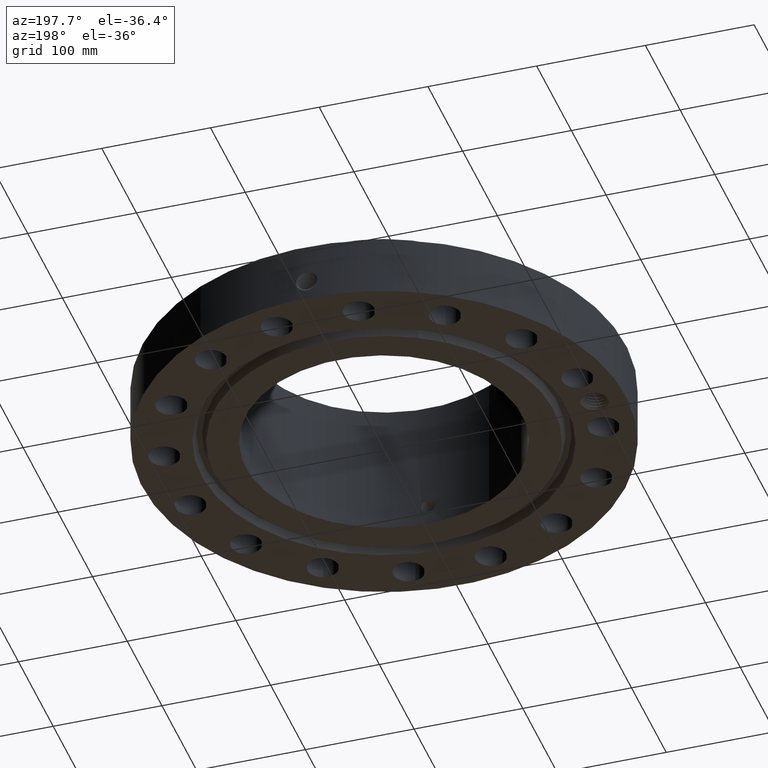
[diagram: clean part render]
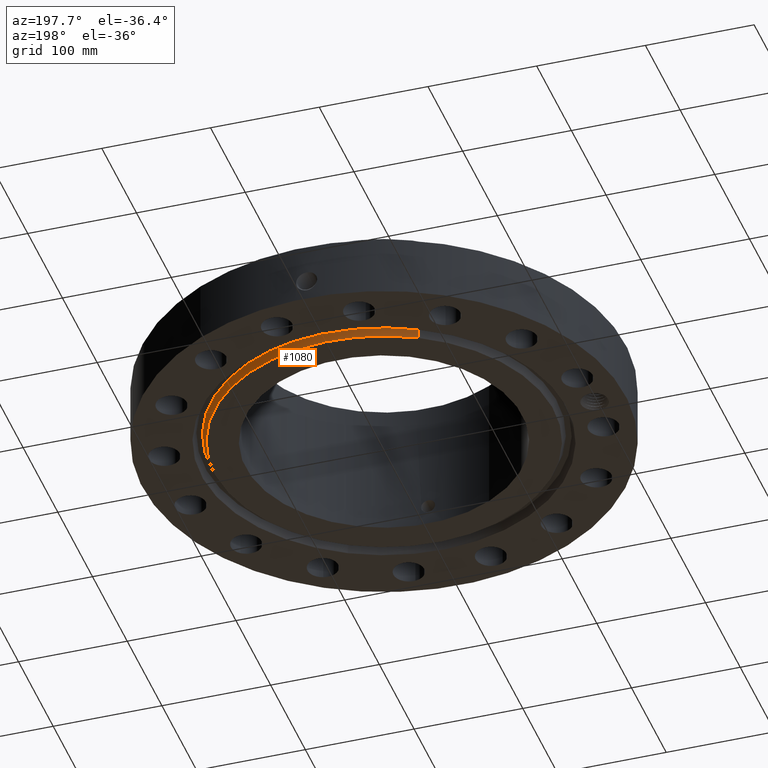
[diagram: same view with one face highlighted and labeled with its STEP entity id]
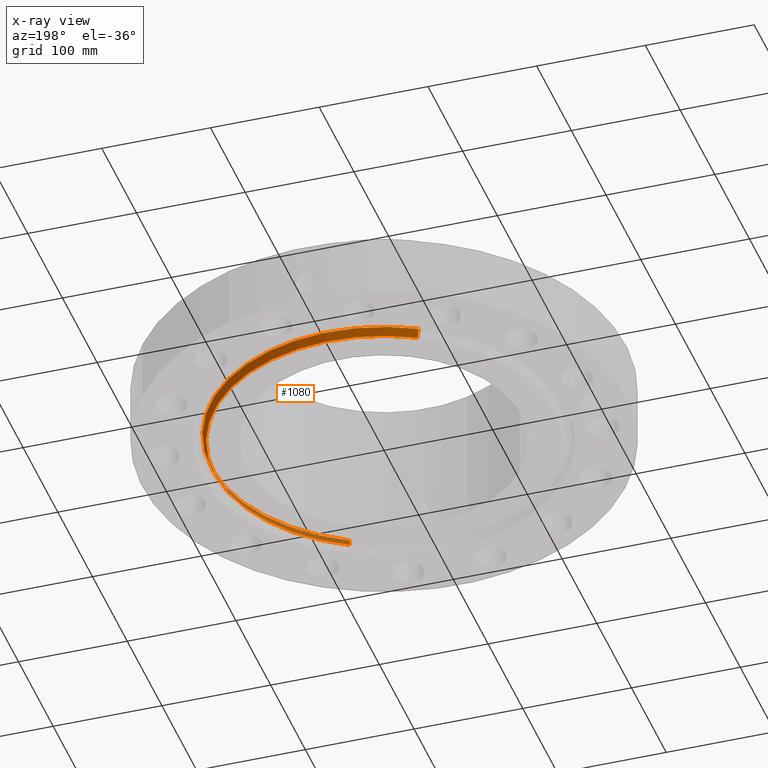
[diagram: x-ray of the same camera — body ghosted, the highlighted face saturated]
A machine part, auxiliary view. The second image highlights one B-rep face of the part: STEP entity #1080.
The next image is the same camera in x-ray: the body ghosted, the highlighted face saturated — about 0% of this face is hidden behind the body in this view.
In plain terms, the highlighted conical surface has half-angle 23 deg.
Its self-contained STEP definition (entity closure, byte-faithful):
#602=AXIS2_PLACEMENT_3D('Circle Axis2P3D',#600,#601,$) ;
#1053=AXIS2_PLACEMENT_3D('Cone Axis2P3D',#1050,#1051,#1052) ;
#1064=AXIS2_PLACEMENT_3D('Circle Axis2P3D',#1062,#1063,$) ;
#600=CARTESIAN_POINT('Axis2P3D Location',(5.59482469102E-016,0.,0.)) ;
#604=CARTESIAN_POINT('Vertex',(-2.94391251981,5.38879572131,-1.48612530855E-016)) ;
#606=CARTESIAN_POINT('Vertex',(2.94391251981,-5.38879572131,0.)) ;
#1050=CARTESIAN_POINT('Axis2P3D Location',(0.,0.,-0.0600000000002)) ;
#1055=CARTESIAN_POINT('Line Origine',(-2.97383908161,5.44357592523,0.147056332492)) ;
#1059=CARTESIAN_POINT('Vertex',(-3.0037656434,5.49835612915,0.294112664984)) ;
#1062=CARTESIAN_POINT('Axis2P3D Location',(0.,0.,0.294112664984)) ;
#1066=CARTESIAN_POINT('Vertex',(3.0037656434,-5.49835612915,0.294112664984)) ;
#1069=CARTESIAN_POINT('Line Origine',(2.97383908161,-5.44357592523,0.147056332492)) ;
#601=DIRECTION('Axis2P3D Direction',(0.,0.,-0.0393700787402)) ;
#1051=DIRECTION('Axis2P3D Direction',(0.,0.,0.0393700787402)) ;
#1052=DIRECTION('Axis2P3D XDirection',(-0.0188750212049,0.0345504945626,0.)) ;
#1056=DIRECTION('Vector Direction',(-0.00737505833565,0.0134999537303,0.0362403485611)) ;
#1063=DIRECTION('Axis2P3D Direction',(0.,0.,0.0393700787402)) ;
#1070=DIRECTION('Vector Direction',(0.00737505833565,-0.0134999537303,0.0362403485611)) ;
#1057=VECTOR('Line Direction',#1056,0.0393700787402) ;
#1071=VECTOR('Line Direction',#1070,0.0393700787402) ;
#1075=ORIENTED_EDGE('',*,*,#1061,.F.) ;
#1076=ORIENTED_EDGE('',*,*,#1068,.F.) ;
#1077=ORIENTED_EDGE('',*,*,#1073,.T.) ;
#1078=ORIENTED_EDGE('',*,*,#608,.F.) ;
#1080=ADVANCED_FACE('PartBody',(#1079),#1054,.T.) ;
#603=CIRCLE('generated circle',#602,6.14050000002) ;
#1065=CIRCLE('generated circle',#1064,6.26534341944) ;
#1054=CONICAL_SURFACE('Cone',#1053,6.11503151105,0.401425727959) ;
#608=EDGE_CURVE('',#605,#607,#603,.T.) ;
#1061=EDGE_CURVE('',#1060,#605,#1058,.F.) ;
#1068=EDGE_CURVE('',#1067,#1060,#1065,.T.) ;
#1073=EDGE_CURVE('',#1067,#607,#1072,.F.) ;
#1074=EDGE_LOOP('',(#1075,#1076,#1077,#1078)) ;
#1079=FACE_OUTER_BOUND('',#1074,.T.) ;
#1058=LINE('Line',#1055,#1057) ;
#1072=LINE('Line',#1069,#1071) ;
#605=VERTEX_POINT('',#604) ;
#607=VERTEX_POINT('',#606) ;
#1060=VERTEX_POINT('',#1059) ;
#1067=VERTEX_POINT('',#1066) ;